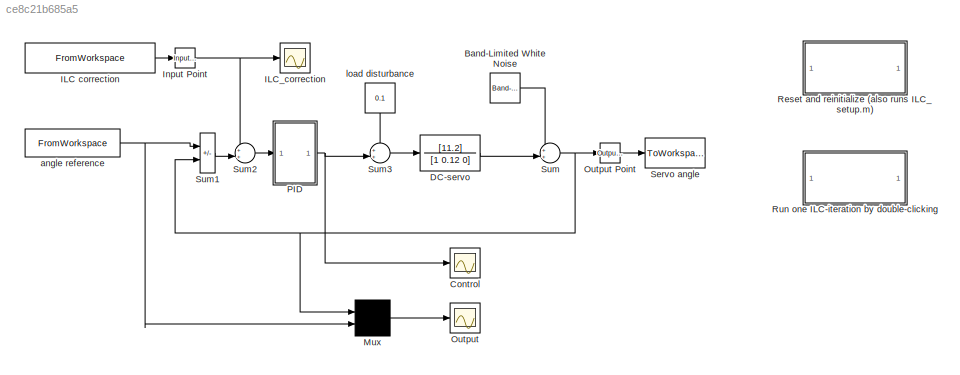
MODEL mdl_ce8c21b685a5
KIND model
CONFIG AbsTol = 1e-6
CONFIG EnableMultiTasking = off
CONFIG FixedStep = auto
CONFIG MaxStep = auto
CONFIG MinStep = auto
CONFIG PreLoadFcn = ILC_setup
CONFIG RelTol = 1e-3
CONFIG SampleTimeConstraint = Unconstrained
CONFIG SolverName = ode45
CONFIG StartTime = time_ILC(1)
CONFIG StopTime = time_ILC(end)
BLOCK [Reference] Band-Limited White Noise  REF=simulink/Sources/Band-Limited
White Noise
  SourceBlock = simulink/Sources/Band-Limited\nWhite Noise
  SourceType = Band-Limited White Noise.
BLOCK [Scope] Control
  Floating = off
  NumInputPorts = 1
  ScopeSpecificationString = C++SS(StrPVP('Location','[107, 416, 419, 653]'),StrPVP('Open','off'),StrPVP('TickLabels','on'),MxPVP('AxesTitles',54,'struct(''axes1'',''%<SignalLabel>'')'),StrPVP('ShowLegends','off'),StrPVP('TimeRange','60'),StrPVP('YMin','-10'),StrPVP('YMax','10'),StrPVP('BlockParamSampleTime','0'),StrPVP('LimitDataPoints','on'),StrPVP('DataFormat','Array'),StrPVP('Decimation','1'),StrPVP('BlockParamSampleInput...<+9ch>
BLOCK [TransferFcn] DC-servo
  Denominator = [1 0.12 0]
  Numerator = [11.2]
BLOCK [FromWorkspace] ILC correction
  SampleTime = tsamp_ILC
  VariableName = [ time_ILC correction_ILC(:,idx_ILC)]
  ZeroCross = off
BLOCK [Scope] ILC_correction
  Floating = off
  NumInputPorts = 1
  ScopeSpecificationString = C++SS(StrPVP('Location','[250, 521, 727, 763]'),StrPVP('Open','off'),StrPVP('TickLabels','on'),MxPVP('AxesTitles',54,'struct(''axes1'',''%<SignalLabel>'')'),StrPVP('ShowLegends','off'),StrPVP('TimeRange','20'),StrPVP('YMin','-1'),StrPVP('YMax','1'),StrPVP('SaveName','ScopeData1'),StrPVP('LimitDataPoints','off'),StrPVP('BlockParamSampleTime','0'),StrPVP('DataFormat','Array'),StrPVP('Decimation','1'...<+40ch>
BLOCK [Reference] Input Point  REF=slctrlobsolete/Input Point  (lib defined in mdl_5c8d881fcced)
  SourceBlock = slctrlobsolete/Input Point
  SourceType = InputPoint
BLOCK [Mux] Mux
  Inputs = 2
BLOCK [Scope] Output
  Floating = off
  NumInputPorts = 1
  ScopeSpecificationString = Simulink.scopes.TimeScopeBlockCfg('CurrentConfiguration', extmgr.ConfigurationSet(extmgr.Configuration('Core','General UI',true),extmgr.Configuration('Core','Source UI',true),extmgr.Configuration('Sources','WiredSimulink',true,'DataLoggingSaveFormat','Array','DataLoggingDecimation','1','DataLoggingDecimateData',true),extmgr.Configuration('Visuals','Time Domain',true,'TimeAxisLabels','All','Seriali...<+1660ch>
BLOCK [Reference] Output Point  REF=slctrlobsolete/Output Point  (lib defined in mdl_5c8d881fcced)
  SourceBlock = slctrlobsolete/Output Point
  SourceType = OutputPoint
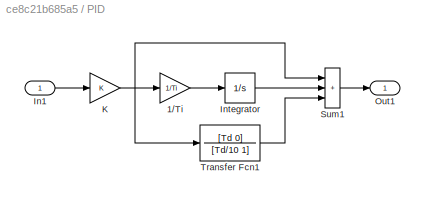
BLOCK [SubSystem] PID
  ShowPortLabels = none
BLOCK [Gain] PID/1//Ti
  Gain = 1/Ti
  OutDataTypeStr = Inherit: Same as input
  ParamDataTypeStr = Inherit: Same as input
  SaturateOnIntegerOverflow = on
BLOCK [Inport] PID/In1
BLOCK [Integrator] PID/Integrator
BLOCK [Gain] PID/K
  Gain = K
  OutDataTypeStr = Inherit: Same as input
  ParamDataTypeStr = Inherit: Same as input
  SaturateOnIntegerOverflow = on
BLOCK [Outport] PID/Out1
BLOCK [Sum] PID/Sum1
  IconShape = rectangular
  InputSameDT = on
  Inputs = +++
  OutDataTypeStr = Inherit: Same as first input
  SaturateOnIntegerOverflow = on
BLOCK [TransferFcn] PID/Transfer Fcn1
  Denominator = [Td/10 1]
  Numerator = [Td 0]
BLOCK [SubSystem] Reset and reinitialize (also runs ILC_setup.m)
  OpenFcn = reset_idx_ILC
BLOCK [SubSystem] Run one ILC-iteration by double-clicking
  OpenFcn = run_ILC_iteration
BLOCK [ToWorkspace] Servo angle
  MaxDataPoints = inf
  SampleTime = -1
  SaveFormat = Structure With Time
  VariableName = ILC_pos
BLOCK [Sum] Sum
  InputSameDT = on
  Inputs = ++|
  OutDataTypeStr = Inherit: Same as first input
  SaturateOnIntegerOverflow = on
BLOCK [Sum] Sum1
  IconShape = rectangular
  InputSameDT = on
  Inputs = +-
  OutDataTypeStr = Inherit: Same as first input
  SaturateOnIntegerOverflow = on
BLOCK [Sum] Sum2
  InputSameDT = on
  Inputs = ++|
  OutDataTypeStr = Inherit: Same as first input
  SaturateOnIntegerOverflow = on
BLOCK [Sum] Sum3
  InputSameDT = on
  Inputs = ++|
  OutDataTypeStr = Inherit: Same as first input
  SaturateOnIntegerOverflow = on
BLOCK [FromWorkspace] angle reference
  SampleTime = tsamp_ILC
  VariableName = [ time_ILC pos_Reference_ILC]
  ZeroCross = off
BLOCK [Constant] load disturbance
  NameLocation = left
  Value = 0.1
LINE Band-Limited White Noise:1 -> Sum:1
LINE DC-servo:1 -> Sum:2
LINE ILC correction:1 -> Input Point:1
NET Input Point:1 -> ILC_correction:1, Sum2:1
LINE Mux:1 -> Output:1
LINE Output Point:1 -> Servo angle:1
LINE PID/1//Ti:1 -> PID/Integrator:1
LINE PID/In1:1 -> PID/K:1
LINE PID/Integrator:1 -> PID/Sum1:2
NET PID/K:1 -> PID/1//Ti:1, PID/Sum1:1, PID/Transfer Fcn1:1
LINE PID/Sum1:1 -> PID/Out1:1
LINE PID/Transfer Fcn1:1 -> PID/Sum1:3
NET PID:1 -> Control:1, Sum3:2
LINE Sum1:1 -> Sum2:2
LINE Sum2:1 -> PID:1
LINE Sum3:1 -> DC-servo:1
NET Sum:1 -> Mux:1, Output Point:1, Sum1:2
NET angle reference:1 -> Mux:2, Sum1:1
LINE load disturbance:1 -> Sum3:1
note: NET lines group one-source signal fan-out (src -> all destinations, sorted); 1:1 wires keep LINE
